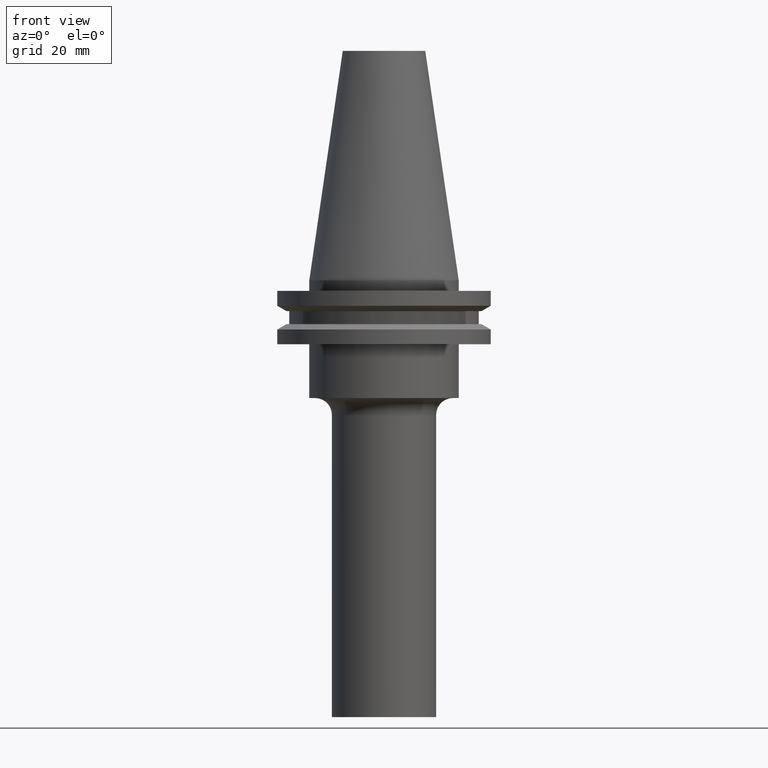
[diagram: clean part render]
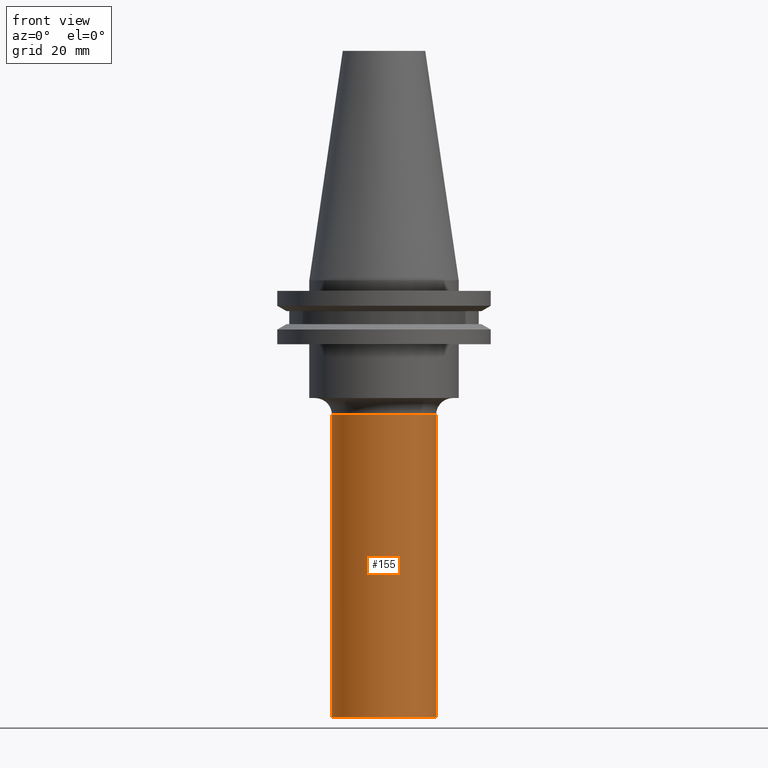
[diagram: same view with one face highlighted and labeled with its STEP entity id]
A machine part, front view. The second image highlights one B-rep face of the part: STEP entity #155.
In plain terms, the highlighted cylindrical surface (partial cylindrical patch) has radius 15.5 mm, axis along (-0, -0, 1).
Its self-contained STEP definition (entity closure, byte-faithful):
#14 = ORIENTED_EDGE ( 'NONE', *, *, #737, .T. ) ;
#26 = FACE_OUTER_BOUND ( 'NONE', #516, .T. ) ;
#29 = CARTESIAN_POINT ( 'NONE',  ( 15.50000000000000000, 0.000000000000000000, 0.000000000000000000 ) ) ;
#49 = ORIENTED_EDGE ( 'NONE', *, *, #348, .F. ) ;
#78 = DIRECTION ( 'NONE',  ( -0.000000000000000000, -0.000000000000000000, 1.000000000000000000 ) ) ;
#124 = VERTEX_POINT ( 'NONE', #486 ) ;
#134 = VERTEX_POINT ( 'NONE', #623 ) ;
#155 = ADVANCED_FACE ( 'NONE', ( #26 ), #271, .T. ) ;
#163 = AXIS2_PLACEMENT_3D ( 'NONE', #213, #207, #270 ) ;
#181 = EDGE_CURVE ( 'NONE', #134, #701, #201, .T. ) ;
#193 = CARTESIAN_POINT ( 'NONE',  ( -15.50000000000000000, 1.898202538678397557E-15, -130.0000000000000000 ) ) ;
#201 = LINE ( 'NONE', #29, #413 ) ;
#207 = DIRECTION ( 'NONE',  ( -0.000000000000000000, -0.000000000000000000, 1.000000000000000000 ) ) ;
#213 = CARTESIAN_POINT ( 'NONE',  ( 0.000000000000000000, 0.000000000000000000, -130.0000000000000000 ) ) ;
#226 = CARTESIAN_POINT ( 'NONE',  ( -15.50000000000000000, 1.898202538678397557E-15, 0.000000000000000000 ) ) ;
#253 = DIRECTION ( 'NONE',  ( 1.000000000000000000, 0.000000000000000000, 0.000000000000000000 ) ) ;
#262 = AXIS2_PLACEMENT_3D ( 'NONE', #746, #78, #689 ) ;
#264 = CARTESIAN_POINT ( 'NONE',  ( 15.50000000000000000, 0.000000000000000000, -40.04999999999999005 ) ) ;
#270 = DIRECTION ( 'NONE',  ( 1.000000000000000000, 0.000000000000000000, 0.000000000000000000 ) ) ;
#271 = CYLINDRICAL_SURFACE ( 'NONE', #262, 15.50000000000000000 ) ;
#274 = DIRECTION ( 'NONE',  ( -0.000000000000000000, -0.000000000000000000, 1.000000000000000000 ) ) ;
#285 = VERTEX_POINT ( 'NONE', #193 ) ;
#292 = AXIS2_PLACEMENT_3D ( 'NONE', #594, #546, #253 ) ;
#348 = EDGE_CURVE ( 'NONE', #124, #701, #520, .T. ) ;
#374 = ORIENTED_EDGE ( 'NONE', *, *, #181, .T. ) ;
#413 = VECTOR ( 'NONE', #274, 1000.000000000000000 ) ;
#427 = ORIENTED_EDGE ( 'NONE', *, *, #537, .F. ) ;
#449 = DIRECTION ( 'NONE',  ( -0.000000000000000000, -0.000000000000000000, 1.000000000000000000 ) ) ;
#486 = CARTESIAN_POINT ( 'NONE',  ( -15.50000000000000000, 1.898202538678397557E-15, -40.04999999999999005 ) ) ;
#491 = CIRCLE ( 'NONE', #163, 15.50000000000000000 ) ;
#516 = EDGE_LOOP ( 'NONE', ( #427, #14, #374, #49 ) ) ;
#520 = CIRCLE ( 'NONE', #292, 15.50000000000000000 ) ;
#537 = EDGE_CURVE ( 'NONE', #285, #124, #747, .T. ) ;
#546 = DIRECTION ( 'NONE',  ( -0.000000000000000000, -0.000000000000000000, 1.000000000000000000 ) ) ;
#594 = CARTESIAN_POINT ( 'NONE',  ( 0.000000000000000000, 0.000000000000000000, -40.04999999999999005 ) ) ;
#623 = CARTESIAN_POINT ( 'NONE',  ( 15.50000000000000000, 0.000000000000000000, -130.0000000000000000 ) ) ;
#689 = DIRECTION ( 'NONE',  ( 1.000000000000000000, 0.000000000000000000, 0.000000000000000000 ) ) ;
#701 = VERTEX_POINT ( 'NONE', #264 ) ;
#737 = EDGE_CURVE ( 'NONE', #285, #134, #491, .T. ) ;
#746 = CARTESIAN_POINT ( 'NONE',  ( 0.000000000000000000, 0.000000000000000000, 0.000000000000000000 ) ) ;
#747 = LINE ( 'NONE', #226, #762 ) ;
#762 = VECTOR ( 'NONE', #449, 1000.000000000000000 ) ;